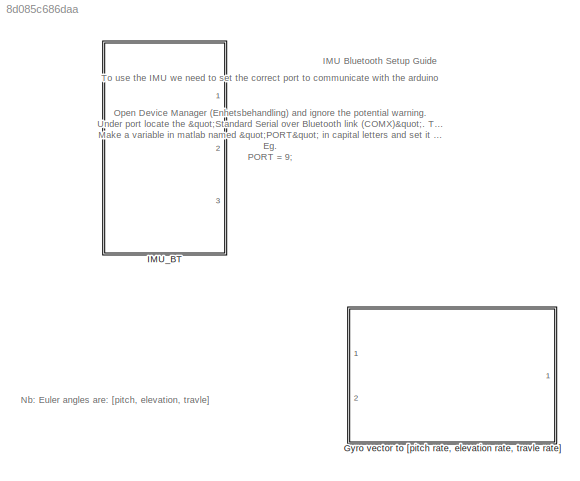
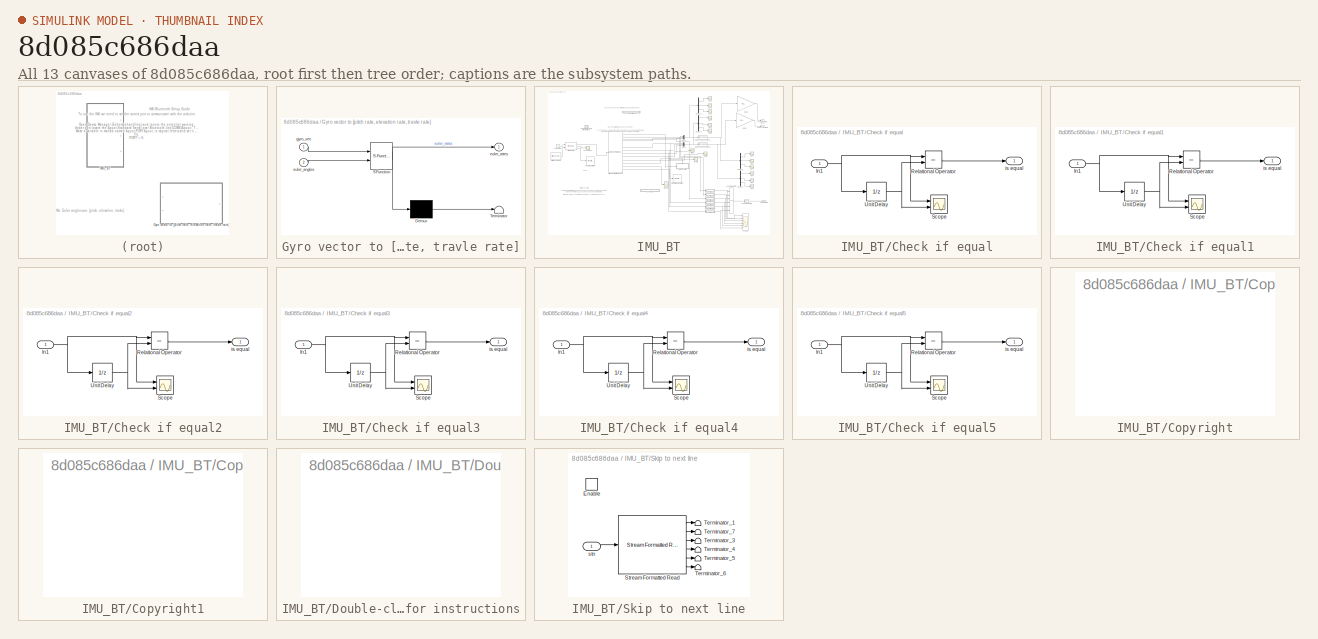
[diagram: thumbnail index - all 13 canvases of the model, root first then tree order]
MODEL slx_8d085c686daa
KIND model
CONFIG AbsTol = auto
CONFIG FixedStep = 0.002
CONFIG MaxStep = auto
CONFIG MinStep = auto
CONFIG RelTol = 1e-3
CONFIG SampleTimeConstraint = Unconstrained
CONFIG Solver = FixedStepDiscrete
CONFIG SolverMode = Auto
CONFIG SolverName = FixedStepDiscrete
CONFIG StartTime = 0.0
CONFIG StopTime = inf
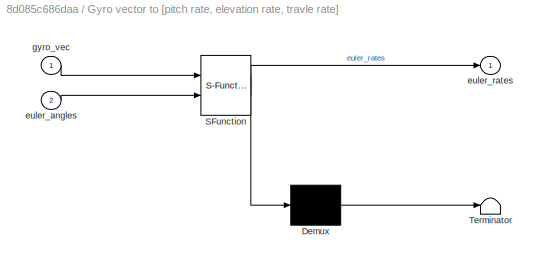
BLOCK [SubSystem] Gyro vector to [pitch rate, elevation rate, travle rate]
  ErrorFcn = Stateflow.Translate.translate
  PermitHierarchicalResolution = ExplicitOnly
  Ports = [2, 1]
  RequestExecContextInheritance = off
  SFBlockType = MATLAB Function
  TreatAsAtomicUnit = on
  Variant = off
BLOCK [Demux] Gyro vector to [pitch rate, elevation rate, travle rate]/ Demux 
  Outputs = 1
  Ports = [1, 1]
BLOCK [S-Function] Gyro vector to [pitch rate, elevation rate, travle rate]/ SFunction 
  EnableBusSupport = on
  FunctionName = sf_sfun
  PortCounts = [2 2]
  Ports = [2, 2]
  SFunctionDeploymentMode = off
  Tag = Stateflow S-Function IMU_heli_1_2 2
BLOCK [Terminator] Gyro vector to [pitch rate, elevation rate, travle rate]/ Terminator 
BLOCK [Inport] Gyro vector to [pitch rate, elevation rate, travle rate]/euler_angles
  IconDisplay = Port number
  Port = 2
BLOCK [Outport] Gyro vector to [pitch rate, elevation rate, travle rate]/euler_rates
  IconDisplay = Port number
BLOCK [Inport] Gyro vector to [pitch rate, elevation rate, travle rate]/gyro_vec
  IconDisplay = Port number
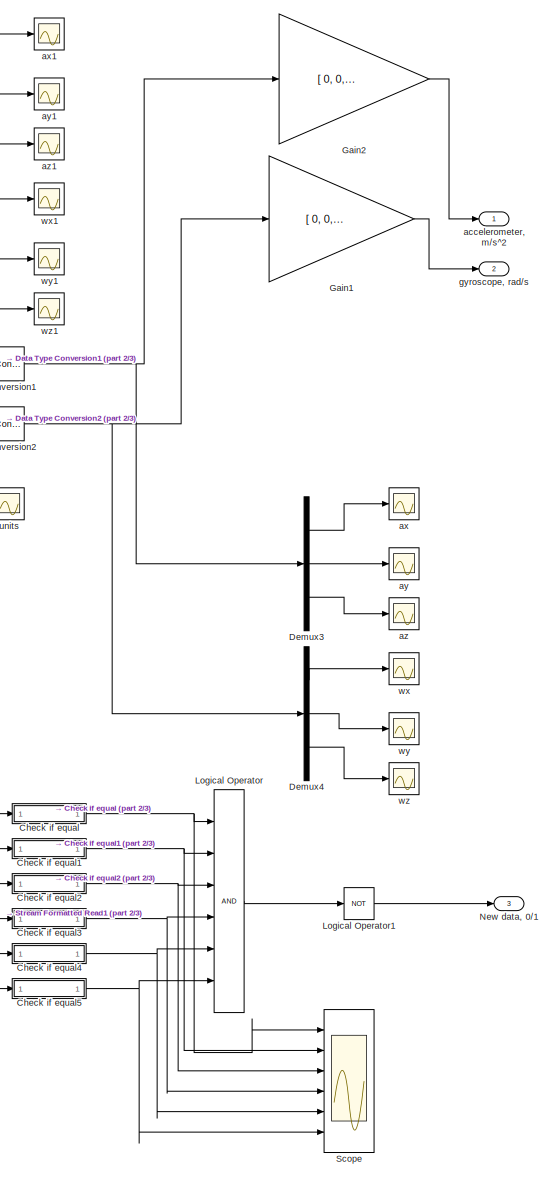
[diagram: IMU_BT - part 1/3, right side, full height]
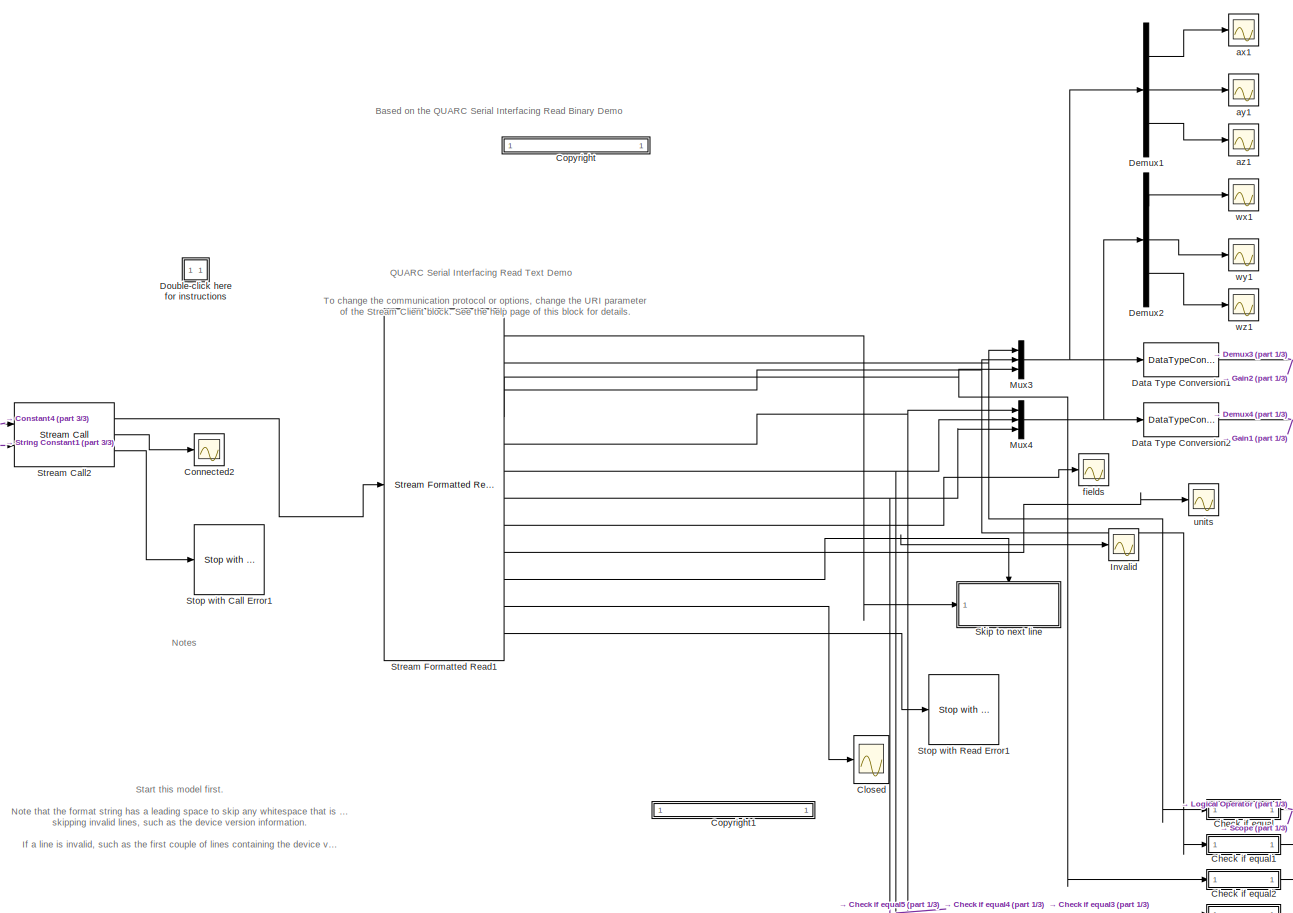
[diagram: IMU_BT - part 2/3, center side, full height]
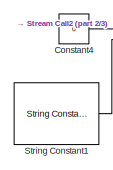
[diagram: IMU_BT - part 3/3, middle left region]
BLOCK [SubSystem] IMU_BT
  Ports = [0, 3]
  RequestExecContextInheritance = off
  Variant = off
BLOCK [SubSystem] IMU_BT/Check if equal
  Ports = [1, 1]
  RequestExecContextInheritance = off
  Variant = off
BLOCK [Inport] IMU_BT/Check if equal/In1
  IconDisplay = Port number
BLOCK [RelationalOperator] IMU_BT/Check if equal/Relational Operator
  InputSameDT = off
  Operator = ==
  OutDataTypeStr = boolean
  Ports = [2, 1]
BLOCK [Scope] IMU_BT/Check if equal/Scope
  NumInputPorts = 2
  Ports = [2]
  ScopeSpecificationString = Simulink.scopes.TimeScopeBlockCfg('CurrentConfiguration', extmgr.ConfigurationSet(extmgr.Configuration('Core','General UI',true),extmgr.Configuration('Core','Source UI',true),extmgr.Configuration('Sources','WiredSimulink',true,'DataLoggingVariableName','ScopeData9'),extmgr.Configuration('Visuals','Time Domain',true,'SerializedDisplays',{struct('MinYLimReal','-1.05125','MaxYLimReal','9.46125','YLab...<+1430ch>
BLOCK [UnitDelay] IMU_BT/Check if equal/Unit Delay
  InitialCondition = NaN
  InputProcessing = Elements as channels (sample based)
  SampleTime = -1
BLOCK [Outport] IMU_BT/Check if equal/is equal
  IconDisplay = Port number
BLOCK [SubSystem] IMU_BT/Check if equal1
  Ports = [1, 1]
  RequestExecContextInheritance = off
  Variant = off
BLOCK [Inport] IMU_BT/Check if equal1/In1
  IconDisplay = Port number
BLOCK [RelationalOperator] IMU_BT/Check if equal1/Relational Operator
  InputSameDT = off
  Operator = ==
  OutDataTypeStr = boolean
  Ports = [2, 1]
BLOCK [Scope] IMU_BT/Check if equal1/Scope
  NumInputPorts = 2
  Ports = [2]
  ScopeSpecificationString = Simulink.scopes.TimeScopeBlockCfg('CurrentConfiguration', extmgr.ConfigurationSet(extmgr.Configuration('Core','General UI',true),extmgr.Configuration('Core','Source UI',true),extmgr.Configuration('Sources','WiredSimulink',true,'DataLoggingVariableName','ScopeData9'),extmgr.Configuration('Visuals','Time Domain',true,'SerializedDisplays',{struct('MinYLimReal','-0.03','MaxYLimReal','0.27','YLabelReal...<+1412ch>
BLOCK [UnitDelay] IMU_BT/Check if equal1/Unit Delay
  InitialCondition = NaN
  InputProcessing = Elements as channels (sample based)
  SampleTime = -1
BLOCK [Outport] IMU_BT/Check if equal1/is equal
  IconDisplay = Port number
BLOCK [SubSystem] IMU_BT/Check if equal2
  Ports = [1, 1]
  RequestExecContextInheritance = off
  Variant = off
BLOCK [Inport] IMU_BT/Check if equal2/In1
  IconDisplay = Port number
BLOCK [RelationalOperator] IMU_BT/Check if equal2/Relational Operator
  InputSameDT = off
  Operator = ==
  OutDataTypeStr = boolean
  Ports = [2, 1]
BLOCK [Scope] IMU_BT/Check if equal2/Scope
  NumInputPorts = 2
  Ports = [2]
  ScopeSpecificationString = Simulink.scopes.TimeScopeBlockCfg('CurrentConfiguration', extmgr.ConfigurationSet(extmgr.Configuration('Core','General UI',true),extmgr.Configuration('Core','Source UI',true),extmgr.Configuration('Sources','WiredSimulink',true,'DataLoggingVariableName','ScopeData9'),extmgr.Configuration('Visuals','Time Domain',true,'SerializedDisplays',{struct('MinYLimReal','-4.7925','MaxYLimReal','0.5325','YLabel...<+1424ch>
BLOCK [UnitDelay] IMU_BT/Check if equal2/Unit Delay
  InitialCondition = NaN
  InputProcessing = Elements as channels (sample based)
  SampleTime = -1
BLOCK [Outport] IMU_BT/Check if equal2/is equal
  IconDisplay = Port number
BLOCK [SubSystem] IMU_BT/Check if equal3
  Ports = [1, 1]
  RequestExecContextInheritance = off
  Variant = off
BLOCK [Inport] IMU_BT/Check if equal3/In1
  IconDisplay = Port number
BLOCK [RelationalOperator] IMU_BT/Check if equal3/Relational Operator
  InputSameDT = off
  Operator = ==
  OutDataTypeStr = boolean
  Ports = [2, 1]
BLOCK [Scope] IMU_BT/Check if equal3/Scope
  NumInputPorts = 2
  Ports = [2]
  ScopeSpecificationString = Simulink.scopes.TimeScopeBlockCfg('CurrentConfiguration', extmgr.ConfigurationSet(extmgr.Configuration('Core','General UI',true),extmgr.Configuration('Core','Source UI',true),extmgr.Configuration('Sources','WiredSimulink',true,'DataLoggingVariableName','ScopeData9'),extmgr.Configuration('Visuals','Time Domain',true,'SerializedDisplays',{struct('MinYLimReal','-0.01125','MaxYLimReal','0.00125','YLab...<+1430ch>
BLOCK [UnitDelay] IMU_BT/Check if equal3/Unit Delay
  InitialCondition = NaN
  InputProcessing = Elements as channels (sample based)
  SampleTime = -1
BLOCK [Outport] IMU_BT/Check if equal3/is equal
  IconDisplay = Port number
BLOCK [SubSystem] IMU_BT/Check if equal4
  Ports = [1, 1]
  RequestExecContextInheritance = off
  Variant = off
BLOCK [Inport] IMU_BT/Check if equal4/In1
  IconDisplay = Port number
BLOCK [RelationalOperator] IMU_BT/Check if equal4/Relational Operator
  InputSameDT = off
  Operator = ==
  OutDataTypeStr = boolean
  Ports = [2, 1]
BLOCK [Scope] IMU_BT/Check if equal4/Scope
  NumInputPorts = 2
  Ports = [2]
  ScopeSpecificationString = Simulink.scopes.TimeScopeBlockCfg('CurrentConfiguration', extmgr.ConfigurationSet(extmgr.Configuration('Core','General UI',true),extmgr.Configuration('Core','Source UI',true),extmgr.Configuration('Sources','WiredSimulink',true,'DataLoggingVariableName','ScopeData9'),extmgr.Configuration('Visuals','Time Domain',true,'SerializedDisplays',{struct('MinYLimReal','-0.045','MaxYLimReal','0.005','YLabelRe...<+1418ch>
BLOCK [UnitDelay] IMU_BT/Check if equal4/Unit Delay
  InitialCondition = NaN
  InputProcessing = Elements as channels (sample based)
  SampleTime = -1
BLOCK [Outport] IMU_BT/Check if equal4/is equal
  IconDisplay = Port number
BLOCK [SubSystem] IMU_BT/Check if equal5
  Ports = [1, 1]
  RequestExecContextInheritance = off
  Variant = off
BLOCK [Inport] IMU_BT/Check if equal5/In1
  IconDisplay = Port number
BLOCK [RelationalOperator] IMU_BT/Check if equal5/Relational Operator
  InputSameDT = off
  Operator = ==
  OutDataTypeStr = boolean
  Ports = [2, 1]
BLOCK [Scope] IMU_BT/Check if equal5/Scope
  NumInputPorts = 2
  Ports = [2]
  ScopeSpecificationString = Simulink.scopes.TimeScopeBlockCfg('CurrentConfiguration', extmgr.ConfigurationSet(extmgr.Configuration('Core','General UI',true),extmgr.Configuration('Core','Source UI',true),extmgr.Configuration('Sources','WiredSimulink',true,'DataLoggingVariableName','ScopeData9'),extmgr.Configuration('Visuals','Time Domain',true,'SerializedDisplays',{struct('MinYLimReal','-0.00125','MaxYLimReal','0.01125','YLab...<+1430ch>
BLOCK [UnitDelay] IMU_BT/Check if equal5/Unit Delay
  InitialCondition = NaN
  InputProcessing = Elements as channels (sample based)
  SampleTime = -1
BLOCK [Outport] IMU_BT/Check if equal5/is equal
  IconDisplay = Port number
BLOCK [Scope] IMU_BT/Closed
  Ports = [1]
  ScopeSpecificationString = C++SS(StrPVP('SaveName','ScopeData1'),StrPVP('LimitDataPoints','on'),StrPVP('DataFormat','Array'),StrPVP('Decimation','1'),StrPVP('BlockParamSampleInput','off'))
BLOCK [Scope] IMU_BT/Connected2
  Ports = [1]
  ScopeSpecificationString = C++SS(StrPVP('SaveName','ScopeData2'),StrPVP('LimitDataPoints','on'),StrPVP('DataFormat','Array'),StrPVP('Decimation','1'),StrPVP('BlockParamSampleInput','off'))
BLOCK [Constant] IMU_BT/Constant4
  Value = 0
BLOCK [SubSystem] IMU_BT/<copyright redacted>
  OpenFcn = web('http://www.quanser.com/');
  Permissions = NoReadOrWrite
  PermitHierarchicalResolution = None
  Ports = []
  RequestExecContextInheritance = off
  Variant = off
BLOCK [SubSystem] IMU_BT/Copyright1
  OpenFcn = web('http://www.quanser.com/');
  Permissions = NoReadOrWrite
  PermitHierarchicalResolution = None
  Ports = []
  RequestExecContextInheritance = off
  Variant = off
BLOCK [DataTypeConversion] IMU_BT/Data Type Conversion1
  OutDataTypeStr = double
  RndMeth = Floor
  SaturateOnIntegerOverflow = off
BLOCK [DataTypeConversion] IMU_BT/Data Type Conversion2
  OutDataTypeStr = double
  RndMeth = Floor
  SaturateOnIntegerOverflow = off
BLOCK [Demux] IMU_BT/Demux1
  DisplayOption = bar
  Outputs = 3
  Ports = [1, 3]
BLOCK [Demux] IMU_BT/Demux2
  DisplayOption = bar
  Outputs = 3
  Ports = [1, 3]
BLOCK [Demux] IMU_BT/Demux3
  DisplayOption = bar
  Outputs = 3
  Ports = [1, 3]
BLOCK [Demux] IMU_BT/Demux4
  DisplayOption = bar
  Outputs = 3
  Ports = [1, 3]
BLOCK [SubSystem] IMU_BT/Double-click here for instructions
  OpenFcn = qc_show_demo('quarc_serial_interfacing_text_demo');
  Permissions = NoReadOrWrite
  PermitHierarchicalResolution = None
  Ports = []
  RequestExecContextInheritance = off
  Variant = off
BLOCK [Gain] IMU_BT/Gain1
  Gain = [ 0, 0, 1; 0, 1, 0; -1, 0, 0]
  Multiplication = Matrix(K*u) (u vector)
  OutDataTypeStr = Inherit: Inherit via internal rule
  ParamDataTypeStr = Inherit: Inherit via internal rule
  SaturateOnIntegerOverflow = off
BLOCK [Gain] IMU_BT/Gain2
  Gain = [ 0, 0, 1; 0, 1, 0; -1, 0, 0]
  Multiplication = Matrix(K*u) (u vector)
  OutDataTypeStr = Inherit: Inherit via internal rule
  ParamDataTypeStr = Inherit: Inherit via internal rule
  SaturateOnIntegerOverflow = off
BLOCK [Scope] IMU_BT/Invalid
  Ports = [1]
  ScopeSpecificationString = Simulink.scopes.TimeScopeBlockCfg('CurrentConfiguration', extmgr.ConfigurationSet(extmgr.Configuration('Core','General UI',true),extmgr.Configuration('Core','Source UI',true),extmgr.Configuration('Sources','WiredSimulink',true,'DataLoggingVariableName','ScopeData3','DataLoggingSaveFormat','StructureWithTime','DataLoggingLimitDataPoints',true,'DataLoggingDecimation','1','DataLoggingDecimateData',tr...<+1733ch>
BLOCK [Logic] IMU_BT/Logical Operator
  AllPortsSameDT = off
  Inputs = 6
  OutDataTypeStr = boolean
  Ports = [6, 1]
BLOCK [Logic] IMU_BT/Logical Operator1
  AllPortsSameDT = off
  Operator = NOT
  OutDataTypeStr = boolean
  Ports = [1, 1]
BLOCK [Mux] IMU_BT/Mux3
  DisplayOption = bar
  Inputs = 3
  Ports = [3, 1]
BLOCK [Mux] IMU_BT/Mux4
  DisplayOption = bar
  Inputs = 3
  Ports = [3, 1]
BLOCK [Outport] IMU_BT/New data, 0//1
  IconDisplay = Port number
  Port = 3
BLOCK [Scope] IMU_BT/Scope
  NumInputPorts = 6
  Ports = [6]
  ScopeSpecificationString = C++SS(StrPVP('SaveName','ScopeData4'),StrPVP('LimitDataPoints','on'),StrPVP('DataFormat','Array'),StrPVP('Decimation','1'),StrPVP('BlockParamSampleInput','off'))
BLOCK [SubSystem] IMU_BT/Skip to next line
  Ports = [1, 0, 1]
  RequestExecContextInheritance = off
  TreatAsAtomicUnit = on
  Variant = off
BLOCK [EnablePort] IMU_BT/Skip to next line/Enable
  Ports = []
BLOCK [Reference] IMU_BT/Skip to next line/Stream Formatted Read  REF=quarc_library/Communications/Intermediate/Stream Formatted
Read
  Ports = [1, 6]
  SourceBlock = quarc_library/Communications/Intermediate/Stream Formatted\nRead
  SourceType = Stream Formatted Read
BLOCK [Terminator] IMU_BT/Skip to next line/Terminator_1
BLOCK [Terminator] IMU_BT/Skip to next line/Terminator_3
BLOCK [Terminator] IMU_BT/Skip to next line/Terminator_4
BLOCK [Terminator] IMU_BT/Skip to next line/Terminator_5
BLOCK [Terminator] IMU_BT/Skip to next line/Terminator_6
BLOCK [Terminator] IMU_BT/Skip to next line/Terminator_7
BLOCK [Inport] IMU_BT/Skip to next line/stn
  IconDisplay = Port number
BLOCK [Reference] IMU_BT/Stop with Call Error1  REF=quarc_library/Sinks/Error Handling/Stop with Error
  Ports = [1]
  SourceBlock = quarc_library/Sinks/Error Handling/Stop with Error
  SourceType = Stop with Error
BLOCK [Reference] IMU_BT/Stop with Read Error1  REF=quarc_library/Sinks/Error Handling/Stop with Error
  Ports = [1]
  SourceBlock = quarc_library/Sinks/Error Handling/Stop with Error
  SourceType = Stop with Error
BLOCK [Reference] IMU_BT/Stream Call2  REF=quarc_library/Communications/Intermediate/Stream Call
  Ports = [2, 3]
  SourceBlock = quarc_library/Communications/Intermediate/Stream Call
  SourceType = Stream Call
BLOCK [Reference] IMU_BT/Stream Formatted Read1  REF=quarc_library/Communications/Intermediate/Stream Formatted
Read
  Ports = [1, 12]
  SourceBlock = quarc_library/Communications/Intermediate/Stream Formatted\nRead
  SourceType = Stream Formatted Read
BLOCK [Reference] IMU_BT/String Constant1  REF=quarc_library/Strings/String Constant
  AttributesFormatString = "serial://IMU:%{PORT}?baud=115200,word=8,parity=none,stop=1"
  Ports = [0, 1]
  SourceBlock = quarc_library/Strings/String Constant
  SourceType = String Constant
BLOCK [Outport] IMU_BT/accelerometer, m//s^2
  IconDisplay = Port number
BLOCK [Scope] IMU_BT/ax
  Ports = [1]
  ScopeSpecificationString = C++SS(StrPVP('SaveName','ScopeData5'),StrPVP('LimitDataPoints','on'),StrPVP('DataFormat','Array'),StrPVP('Decimation','1'),StrPVP('BlockParamSampleInput','off'))
BLOCK [Scope] IMU_BT/ax1
  Ports = [1]
  ScopeSpecificationString = C++SS(StrPVP('SaveName','ScopeData6'),StrPVP('LimitDataPoints','on'),StrPVP('DataFormat','Array'),StrPVP('Decimation','1'),StrPVP('BlockParamSampleInput','off'))
BLOCK [Scope] IMU_BT/ay
  Ports = [1]
  ScopeSpecificationString = C++SS(StrPVP('SaveName','ScopeData7'),StrPVP('LimitDataPoints','on'),StrPVP('DataFormat','Array'),StrPVP('Decimation','1'),StrPVP('BlockParamSampleInput','off'))
BLOCK [Scope] IMU_BT/ay1
  Ports = [1]
  ScopeSpecificationString = C++SS(StrPVP('SaveName','ScopeData8'),StrPVP('LimitDataPoints','on'),StrPVP('DataFormat','Array'),StrPVP('Decimation','1'),StrPVP('BlockParamSampleInput','off'))
BLOCK [Scope] IMU_BT/az
  Ports = [1]
  ScopeSpecificationString = C++SS(StrPVP('SaveName','ScopeData9'),StrPVP('LimitDataPoints','on'),StrPVP('DataFormat','Array'),StrPVP('Decimation','1'),StrPVP('BlockParamSampleInput','off'))
BLOCK [Scope] IMU_BT/az1
  Ports = [1]
  ScopeSpecificationString = C++SS(StrPVP('SaveName','ScopeData10'),StrPVP('LimitDataPoints','on'),StrPVP('DataFormat','Array'),StrPVP('Decimation','1'),StrPVP('BlockParamSampleInput','off'))
BLOCK [Scope] IMU_BT/fields
  Ports = [1]
  ScopeSpecificationString = C++SS(StrPVP('SaveName','ScopeData7'),StrPVP('LimitDataPoints','on'),StrPVP('DataFormat','Array'),StrPVP('Decimation','1'),StrPVP('BlockParamSampleInput','off'),StrPVP('SaveName','ScopeData11'))
BLOCK [Outport] IMU_BT/gyroscope, rad//s
  IconDisplay = Port number
  Port = 2
BLOCK [Scope] IMU_BT/units
  Ports = [1]
  ScopeSpecificationString = C++SS(StrPVP('SaveName','ScopeData7'),StrPVP('SaveName','ScopeData8'),StrPVP('LimitDataPoints','on'),StrPVP('DataFormat','Array'),StrPVP('Decimation','1'),StrPVP('BlockParamSampleInput','off'),StrPVP('SaveName','ScopeData12'))
BLOCK [Scope] IMU_BT/wx
  Ports = [1]
  ScopeSpecificationString = C++SS(StrPVP('SaveName','ScopeData13'),StrPVP('LimitDataPoints','on'),StrPVP('DataFormat','Array'),StrPVP('Decimation','1'),StrPVP('BlockParamSampleInput','off'))
BLOCK [Scope] IMU_BT/wx1
  Ports = [1]
  ScopeSpecificationString = C++SS(StrPVP('SaveName','ScopeData14'),StrPVP('LimitDataPoints','on'),StrPVP('DataFormat','Array'),StrPVP('Decimation','1'),StrPVP('BlockParamSampleInput','off'))
BLOCK [Scope] IMU_BT/wy
  Ports = [1]
  ScopeSpecificationString = C++SS(StrPVP('SaveName','ScopeData15'),StrPVP('LimitDataPoints','on'),StrPVP('DataFormat','Array'),StrPVP('Decimation','1'),StrPVP('BlockParamSampleInput','off'))
BLOCK [Scope] IMU_BT/wy1
  Ports = [1]
  ScopeSpecificationString = C++SS(StrPVP('SaveName','ScopeData16'),StrPVP('LimitDataPoints','on'),StrPVP('DataFormat','Array'),StrPVP('Decimation','1'),StrPVP('BlockParamSampleInput','off'))
BLOCK [Scope] IMU_BT/wz
  Ports = [1]
  ScopeSpecificationString = C++SS(StrPVP('SaveName','ScopeData17'),StrPVP('LimitDataPoints','on'),StrPVP('DataFormat','Array'),StrPVP('Decimation','1'),StrPVP('BlockParamSampleInput','off'))
BLOCK [Scope] IMU_BT/wz1
  Ports = [1]
  ScopeSpecificationString = C++SS(StrPVP('SaveName','ScopeData18'),StrPVP('LimitDataPoints','on'),StrPVP('DataFormat','Array'),StrPVP('Decimation','1'),StrPVP('BlockParamSampleInput','off'))
ANNOTATION (root): To use the IMU we need to set the correct port to communicate with the arduino Open Device Manager (Enhetsbehandling) and ignore the potential warning. Under port locate the "Standard Serial over Bluetooth link (COMX)". The X is the port number we need to use. There will probably be two entries with different port number. One of then is the correct port, but we dont know which one. You probably ha...<+120ch>
ANNOTATION (root): IMU Bluetooth Setup Guide
ANNOTATION (root): Nb: Euler angles are: [pitch, elevation, travle]
ANNOTATION IMU_BT: Based on the QUARC Serial Interfacing Read Binary Demo
ANNOTATION IMU_BT: Notes
ANNOTATION IMU_BT: QUARC Serial Interfacing Read Text Demo
ANNOTATION IMU_BT: Start this model first. Note that the format string has a leading space to skip any whitespace that is present after skipping invalid lines, such as the device version information. If a line is invalid, such as the first couple of lines containing the device version information, the 'inv' output goes high and the input pointer does not advance. Hence, the same invalid input may be parsed again. To...<+569ch>
ANNOTATION IMU_BT: To change the communication protocol or options, change the URI parameter of the Stream Client block. See the help page of this block for details.
NET IMU_BT/Check if equal/In1:1 -> IMU_BT/Check if equal/Relational Operator:1, IMU_BT/Check if equal/Scope:1, IMU_BT/Check if equal/Unit Delay:1
LINE IMU_BT/Check if equal/Relational Operator:1 -> IMU_BT/Check if equal/is equal:1
NET IMU_BT/Check if equal/Unit Delay:1 -> IMU_BT/Check if equal/Relational Operator:2, IMU_BT/Check if equal/Scope:2
NET IMU_BT/Check if equal1/In1:1 -> IMU_BT/Check if equal1/Relational Operator:1, IMU_BT/Check if equal1/Scope:1, IMU_BT/Check if equal1/Unit Delay:1
LINE IMU_BT/Check if equal1/Relational Operator:1 -> IMU_BT/Check if equal1/is equal:1
NET IMU_BT/Check if equal1/Unit Delay:1 -> IMU_BT/Check if equal1/Relational Operator:2, IMU_BT/Check if equal1/Scope:2
NET IMU_BT/Check if equal1:1 -> IMU_BT/Logical Operator:2, IMU_BT/Scope:2
NET IMU_BT/Check if equal2/In1:1 -> IMU_BT/Check if equal2/Relational Operator:1, IMU_BT/Check if equal2/Scope:1, IMU_BT/Check if equal2/Unit Delay:1
LINE IMU_BT/Check if equal2/Relational Operator:1 -> IMU_BT/Check if equal2/is equal:1
NET IMU_BT/Check if equal2/Unit Delay:1 -> IMU_BT/Check if equal2/Relational Operator:2, IMU_BT/Check if equal2/Scope:2
NET IMU_BT/Check if equal2:1 -> IMU_BT/Logical Operator:3, IMU_BT/Scope:3
NET IMU_BT/Check if equal3/In1:1 -> IMU_BT/Check if equal3/Relational Operator:1, IMU_BT/Check if equal3/Scope:1, IMU_BT/Check if equal3/Unit Delay:1
LINE IMU_BT/Check if equal3/Relational Operator:1 -> IMU_BT/Check if equal3/is equal:1
NET IMU_BT/Check if equal3/Unit Delay:1 -> IMU_BT/Check if equal3/Relational Operator:2, IMU_BT/Check if equal3/Scope:2
NET IMU_BT/Check if equal3:1 -> IMU_BT/Logical Operator:4, IMU_BT/Scope:4
NET IMU_BT/Check if equal4/In1:1 -> IMU_BT/Check if equal4/Relational Operator:1, IMU_BT/Check if equal4/Scope:1, IMU_BT/Check if equal4/Unit Delay:1
LINE IMU_BT/Check if equal4/Relational Operator:1 -> IMU_BT/Check if equal4/is equal:1
NET IMU_BT/Check if equal4/Unit Delay:1 -> IMU_BT/Check if equal4/Relational Operator:2, IMU_BT/Check if equal4/Scope:2
NET IMU_BT/Check if equal4:1 -> IMU_BT/Logical Operator:5, IMU_BT/Scope:5
NET IMU_BT/Check if equal5/In1:1 -> IMU_BT/Check if equal5/Relational Operator:1, IMU_BT/Check if equal5/Scope:1, IMU_BT/Check if equal5/Unit Delay:1
LINE IMU_BT/Check if equal5/Relational Operator:1 -> IMU_BT/Check if equal5/is equal:1
NET IMU_BT/Check if equal5/Unit Delay:1 -> IMU_BT/Check if equal5/Relational Operator:2, IMU_BT/Check if equal5/Scope:2
NET IMU_BT/Check if equal5:1 -> IMU_BT/Logical Operator:6, IMU_BT/Scope:6
NET IMU_BT/Check if equal:1 -> IMU_BT/Logical Operator:1, IMU_BT/Scope:1
LINE IMU_BT/Constant4:1 -> IMU_BT/Stream Call2:1
NET IMU_BT/Data Type Conversion1:1 -> IMU_BT/Demux3:1, IMU_BT/Gain2:1
NET IMU_BT/Data Type Conversion2:1 -> IMU_BT/Demux4:1, IMU_BT/Gain1:1
LINE IMU_BT/Demux1:1 -> IMU_BT/ax1:1
LINE IMU_BT/Demux1:2 -> IMU_BT/ay1:1
LINE IMU_BT/Demux1:3 -> IMU_BT/az1:1
LINE IMU_BT/Demux2:1 -> IMU_BT/wx1:1
LINE IMU_BT/Demux2:2 -> IMU_BT/wy1:1
LINE IMU_BT/Demux2:3 -> IMU_BT/wz1:1
LINE IMU_BT/Demux3:1 -> IMU_BT/ax:1
LINE IMU_BT/Demux3:2 -> IMU_BT/ay:1
LINE IMU_BT/Demux3:3 -> IMU_BT/az:1
LINE IMU_BT/Demux4:1 -> IMU_BT/wx:1
LINE IMU_BT/Demux4:2 -> IMU_BT/wy:1
LINE IMU_BT/Demux4:3 -> IMU_BT/wz:1
LINE IMU_BT/Gain1:1 -> IMU_BT/gyroscope, rad//s:1
LINE IMU_BT/Gain2:1 -> IMU_BT/accelerometer, m//s^2:1
LINE IMU_BT/Logical Operator1:1 -> IMU_BT/New data, 0//1:1
LINE IMU_BT/Logical Operator:1 -> IMU_BT/Logical Operator1:1
NET IMU_BT/Mux3:1 -> IMU_BT/Data Type Conversion1:1, IMU_BT/Demux1:1
NET IMU_BT/Mux4:1 -> IMU_BT/Data Type Conversion2:1, IMU_BT/Demux2:1
LINE IMU_BT/Skip to next line/Stream Formatted Read:1 -> IMU_BT/Skip to next line/Terminator_1:1
LINE IMU_BT/Skip to next line/Stream Formatted Read:2 -> IMU_BT/Skip to next line/Terminator_7:1
LINE IMU_BT/Skip to next line/Stream Formatted Read:3 -> IMU_BT/Skip to next line/Terminator_3:1
LINE IMU_BT/Skip to next line/Stream Formatted Read:4 -> IMU_BT/Skip to next line/Terminator_4:1
LINE IMU_BT/Skip to next line/Stream Formatted Read:5 -> IMU_BT/Skip to next line/Terminator_5:1
LINE IMU_BT/Skip to next line/Stream Formatted Read:6 -> IMU_BT/Skip to next line/Terminator_6:1
LINE IMU_BT/Skip to next line/stn:1 -> IMU_BT/Skip to next line/Stream Formatted Read:1
LINE IMU_BT/Stream Call2:1 -> IMU_BT/Stream Formatted Read1:1
LINE IMU_BT/Stream Call2:2 -> IMU_BT/Connected2:1
LINE IMU_BT/Stream Call2:3 -> IMU_BT/Stop with Call Error1:1
LINE IMU_BT/Stream Formatted Read1:1 -> IMU_BT/Skip to next line:1
NET IMU_BT/Stream Formatted Read1:10 -> IMU_BT/Invalid:1, IMU_BT/Skip to next line:enable
LINE IMU_BT/Stream Formatted Read1:11 -> IMU_BT/Closed:1
LINE IMU_BT/Stream Formatted Read1:12 -> IMU_BT/Stop with Read Error1:1
NET IMU_BT/Stream Formatted Read1:2 -> IMU_BT/Check if equal:1, IMU_BT/Mux3:1
NET IMU_BT/Stream Formatted Read1:3 -> IMU_BT/Check if equal1:1, IMU_BT/Mux3:2
NET IMU_BT/Stream Formatted Read1:4 -> IMU_BT/Check if equal2:1, IMU_BT/Mux3:3
NET IMU_BT/Stream Formatted Read1:5 -> IMU_BT/Check if equal3:1, IMU_BT/Mux4:1
NET IMU_BT/Stream Formatted Read1:6 -> IMU_BT/Check if equal4:1, IMU_BT/Mux4:2
NET IMU_BT/Stream Formatted Read1:7 -> IMU_BT/Check if equal5:1, IMU_BT/Mux4:3
LINE IMU_BT/Stream Formatted Read1:8 -> IMU_BT/fields:1
LINE IMU_BT/Stream Formatted Read1:9 -> IMU_BT/units:1
LINE IMU_BT/String Constant1:1 -> IMU_BT/Stream Call2:2
note: NET lines group one-source signal fan-out (src -> all destinations, sorted); 1:1 wires keep LINE
CHART Gyro vector to [pitch rate, elevation rate, travle rate] states=1 transitions=1
  STATE_LABEL 'eML_blk_kernel()'
  STATE_LABEL 'SCRIPT:\nfunction euler_rates = gyro_vec_to_euler_rates(gyro_vec,euler_angles)\n%#codegen\n    phi = euler_angles(1);\n    theta = euler_angles(2);\n    %psi = euler_angles(3);\n\n\n    T = [1, sin(phi)*tan(theta), cos(phi)*tan(theta);\n         0, cos(phi),            -sin(phi);\n         0, sin(phi)/cos(theta), cos(phi)/cos(theta)]; \neuler_rates = T*gyro_vec;'
